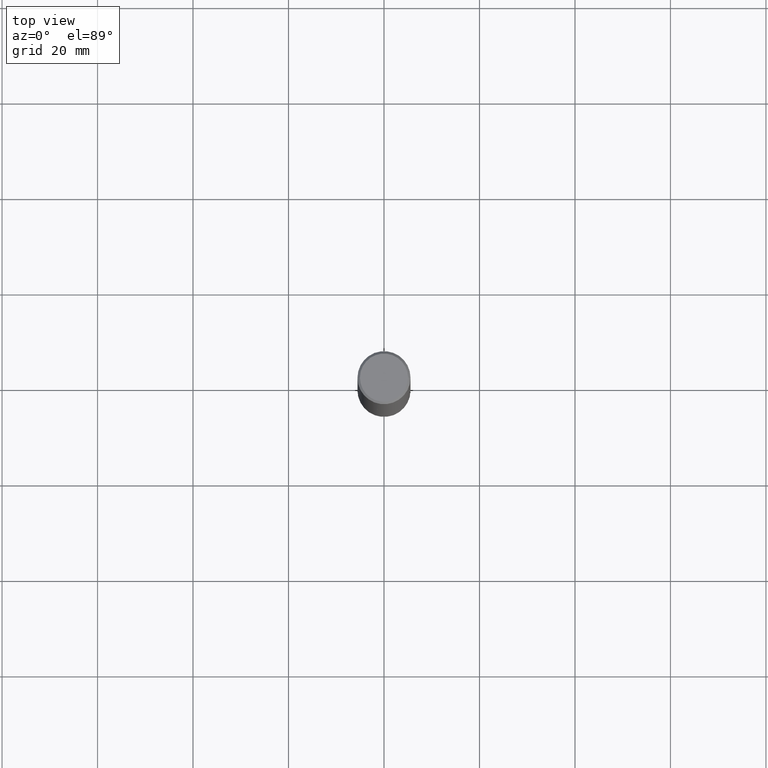
[diagram: clean part render]
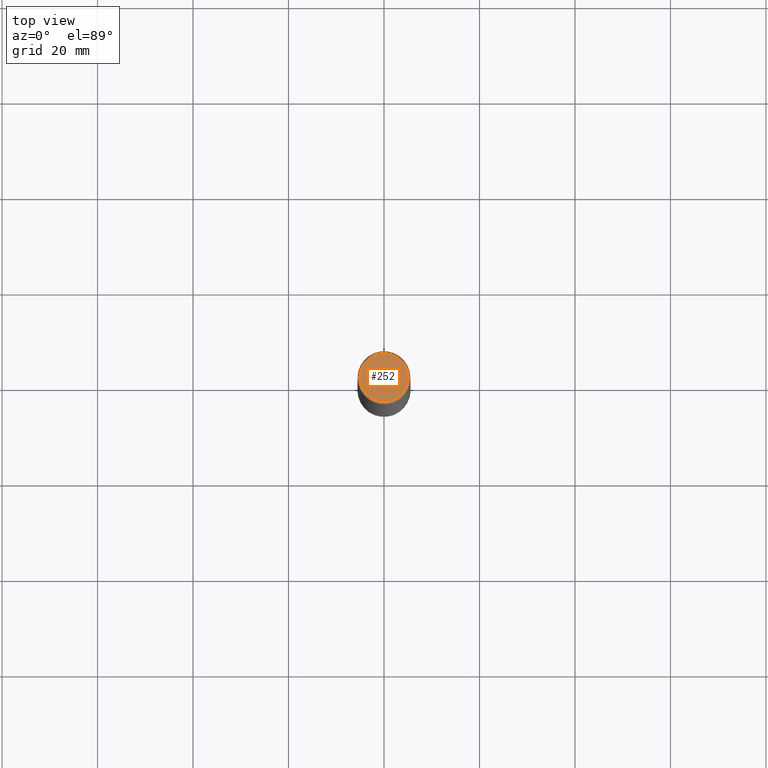
[diagram: same view with one face highlighted and labeled with its STEP entity id]
A machine part, top view. The second image highlights one B-rep face of the part: STEP entity #252.
In plain terms, the highlighted planar face has unit normal (0, -0, -1).
Its self-contained STEP definition (entity closure, byte-faithful):
#19 = DIRECTION ( 'NONE',  ( -2.445468806185136597E-29, 3.491481338843145583E-15, 1.000000000000000000 ) ) ;
#22 = CARTESIAN_POINT ( 'NONE',  ( 0.000000000000000000, 0.000000000000000000, 0.000000000000000000 ) ) ;
#35 = CIRCLE ( 'NONE', #59, 0.1987499999999996214 ) ;
#55 = CARTESIAN_POINT ( 'NONE',  ( 1.387863832190142669E-15, 0.1987499999999996214, -6.939319160950738982E-16 ) ) ;
#59 = AXIS2_PLACEMENT_3D ( 'NONE', #91, #62, #335 ) ;
#62 = DIRECTION ( 'NONE',  ( -2.445468806185136597E-29, 3.491481338843145583E-15, 1.000000000000000000 ) ) ;
#91 = CARTESIAN_POINT ( 'NONE',  ( 0.000000000000000000, 0.000000000000000000, 0.000000000000000000 ) ) ;
#115 = AXIS2_PLACEMENT_3D ( 'NONE', #55, #232, #136 ) ;
#124 = CIRCLE ( 'NONE', #288, 0.1987499999999996214 ) ;
#136 = DIRECTION ( 'NONE',  ( -1.000000000000000000, 6.982962677686265922E-15, -4.876176775795935793E-29 ) ) ;
#172 = VERTEX_POINT ( 'NONE', #284 ) ;
#174 = EDGE_CURVE ( 'NONE', #172, #362, #124, .T. ) ;
#180 = EDGE_CURVE ( 'NONE', #362, #172, #35, .T. ) ;
#232 = DIRECTION ( 'NONE',  ( 2.438088387897960049E-29, -3.491481338843145188E-15, -1.000000000000000000 ) ) ;
#252 = ADVANCED_FACE ( 'NONE', ( #283 ), #337, .F. ) ;
#283 = FACE_OUTER_BOUND ( 'NONE', #317, .T. ) ;
#284 = CARTESIAN_POINT ( 'NONE',  ( 0.1987499999999996214, -1.467043770423236283E-15, 9.982525199991766879E-30 ) ) ;
#288 = AXIS2_PLACEMENT_3D ( 'NONE', #22, #19, #364 ) ;
#317 = EDGE_LOOP ( 'NONE', ( #321, #331 ) ) ;
#321 = ORIENTED_EDGE ( 'NONE', *, *, #180, .T. ) ;
#331 = ORIENTED_EDGE ( 'NONE', *, *, #174, .T. ) ;
#335 = DIRECTION ( 'NONE',  ( 1.000000000000000000, -6.982962677686266711E-15, 4.876176775795935232E-29 ) ) ;
#337 = PLANE ( 'NONE',  #115 ) ;
#357 = CARTESIAN_POINT ( 'NONE',  ( -0.1987499999999996214, 1.422778645578574121E-15, -9.827974342635066879E-30 ) ) ;
#362 = VERTEX_POINT ( 'NONE', #357 ) ;
#364 = DIRECTION ( 'NONE',  ( 1.000000000000000000, -6.982962677686266711E-15, 4.876176775795935232E-29 ) ) ;